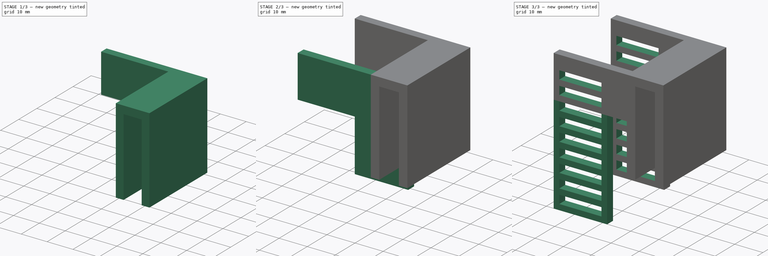
[diagram: build sequence overview — one tinted view per stage of 3, left to right]
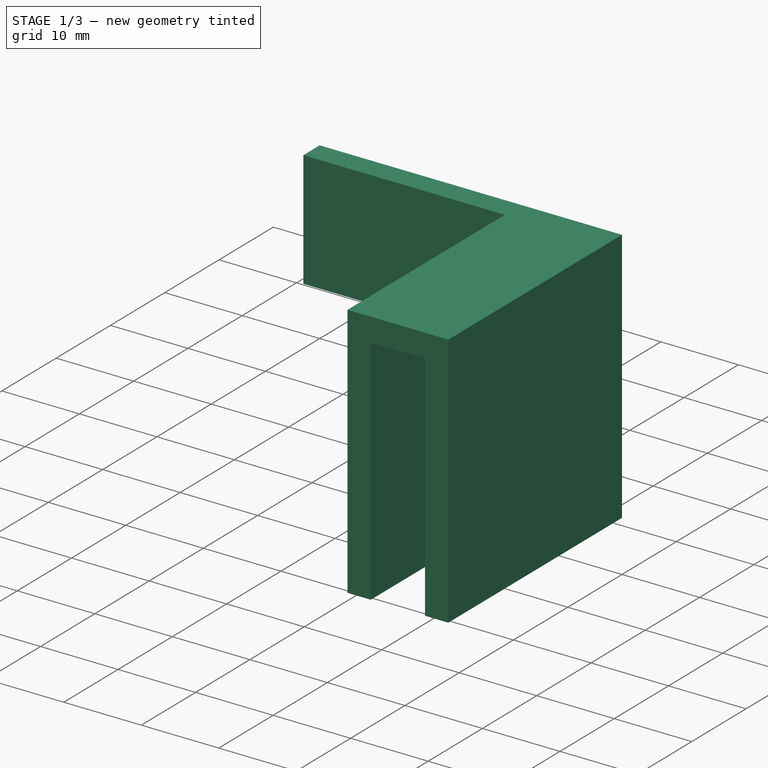
[diagram: stage 1 of 3 — iso view after this stage's code; geometry added in this stage tinted green]
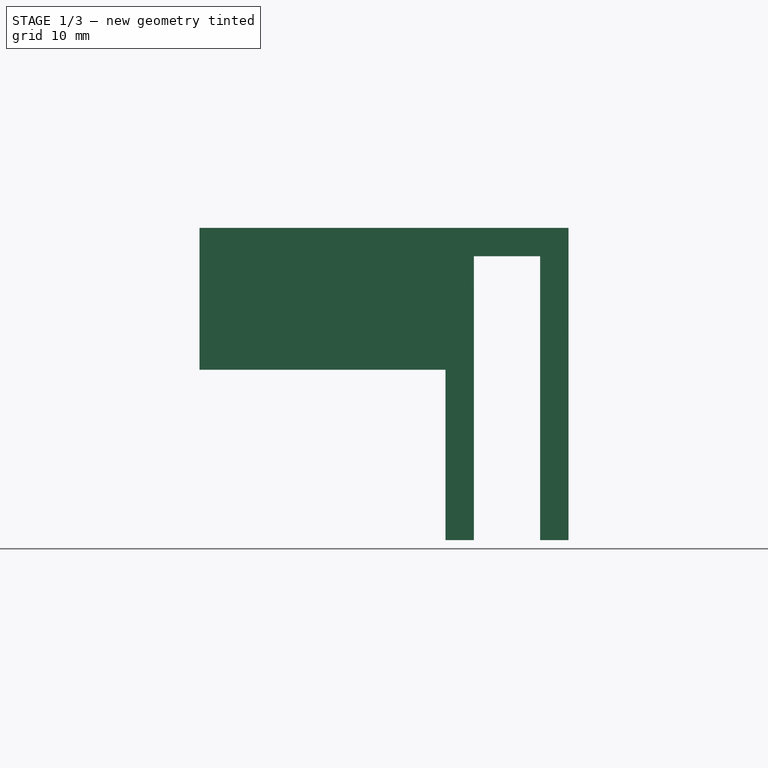
[diagram: stage 1 of 3 — front view after this stage's code; geometry added in this stage tinted green]
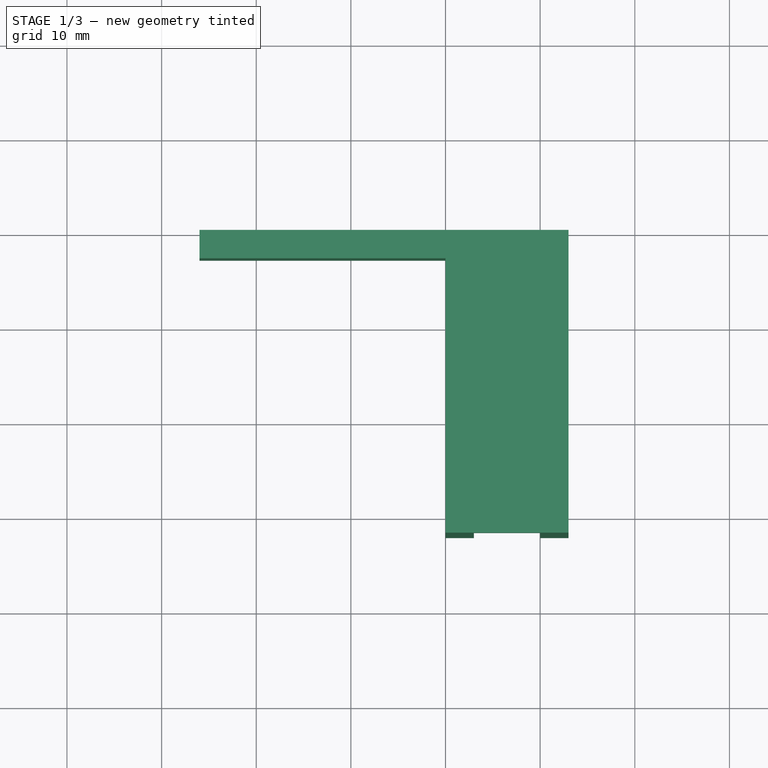
[diagram: stage 1 of 3 — top view after this stage's code; geometry added in this stage tinted green]
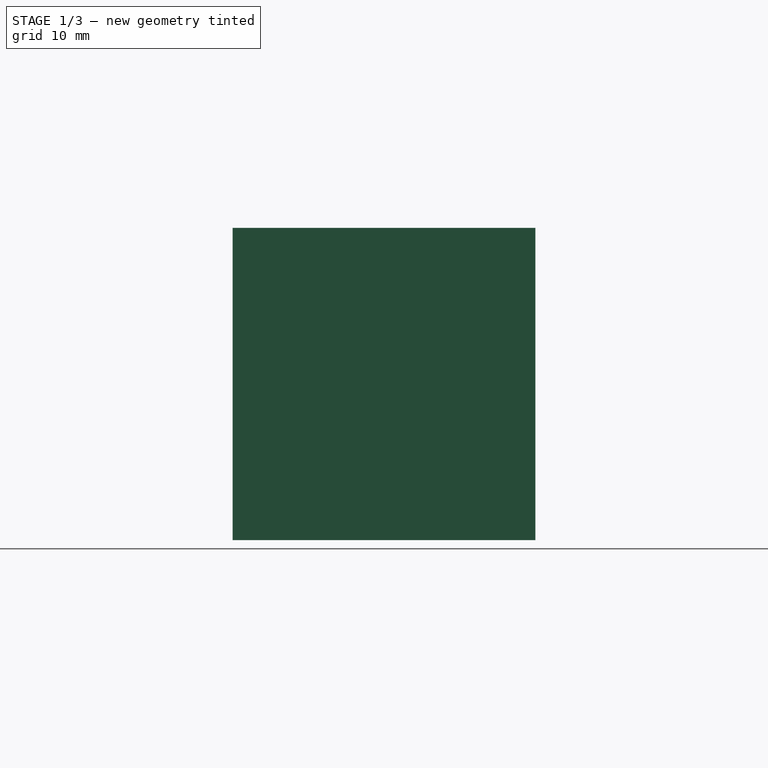
[diagram: stage 1 of 3 — right view after this stage's code; geometry added in this stage tinted green]
FCSTD DOCUMENT  (FreeCAD 0.21R33694 (Git))
Label: FloatSwitchMount
License: All rights reserved
LicenseURL: https://en.wikipedia.org/wiki/All_rights_reserved
objects: Sketcher::SketchObject×6, PartDesign::Pad×5, PartDesign::Pocket×1, PartDesign::Body×1
note: 19 computed .brp shape members not serialized (recipe doc carries the construction recipe); baked Part::Feature solids carry a one-line shape summary decoded from their .brp

FEATURE [Sketcher::SketchObject] Sketch
  FullyConstrained = true
  MapMode = 5
  Placement = pos=(0,0,0) rot=(1,0,0;1.5708rad)
  Support = -> [XZ_Plane]
  sketch-geometry (8):
    g0: LineSegment StartX=0 StartY=0 StartZ=0 EndX=0 EndY=33 EndZ=0
    g1: LineSegment StartX=0 StartY=33 StartZ=0 EndX=13 EndY=33 EndZ=0
    g2: LineSegment StartX=13 StartY=33 StartZ=0 EndX=13 EndY=0 EndZ=0
    g3: LineSegment StartX=13 StartY=0 StartZ=0 EndX=10 EndY=0 EndZ=0
    g4: LineSegment StartX=10 StartY=0 StartZ=0 EndX=10 EndY=30 EndZ=0
    g5: LineSegment StartX=10 StartY=30 StartZ=0 EndX=3 EndY=30 EndZ=0
    g6: LineSegment StartX=3 StartY=30 StartZ=0 EndX=3 EndY=0 EndZ=0
    g7: LineSegment StartX=3 StartY=0 StartZ=0 EndX=0 EndY=0 EndZ=0
  constraints (23):
    c: Coincident(g-1,g0)
    c: PointOnObject(g0,g-2)
    c: Coincident(g0,g1)
    c: Horizontal(g1)
    c: Coincident(g1,g2)
    c: PointOnObject(g2,g-1)
    c: Vertical(g2)
    c: Coincident(g2,g3)
    c: Coincident(g3,g4)
    c: Vertical(g4)
    c: Coincident(g4,g5)
    c: Horizontal(g5)
    c: Coincident(g5,g6)
    c: PointOnObject(g6,g-1)
    c: Vertical(g6)
    c: Coincident(g6,g7)
    c: Coincident(g7,g0)
    c: DistanceY(g0,g0) = 33
    c: DistanceY(g6,g6) = 30
    c: DistanceX(g7,g7) = 3
    c: DistanceX(g3,g3) = 3
    c: DistanceX(g5,g5) = 7
    c: DistanceY(g4,g4) = 30
FEATURE [PartDesign::Pad] Pad
  Direction = (0,-1,2e-16)
  Length = 32
  Length2 = 10
  Placement = pos=(0,0,0) rot=(1,0,0;1.5708rad)
  Profile = -> Sketch
  ReferenceAxis = -> Sketch [N_Axis]
  Type = 0
FEATURE [Sketcher::SketchObject] Sketch001
  FullyConstrained = true
  MapMode = 5
  Placement = pos=(0,0,0) rot=(0.707107,0,-0.707107;3.14159rad)
  Support = -> [Pad]
  sketch-geometry (4):
    g0: LineSegment StartX=-33 StartY=0 StartZ=0 EndX=-18 EndY=0 EndZ=0
    g1: LineSegment StartX=-18 StartY=0 StartZ=0 EndX=-18 EndY=3 EndZ=0
    g2: LineSegment StartX=-18 StartY=3 StartZ=0 EndX=-33 EndY=3 EndZ=0
    g3: LineSegment StartX=-33 StartY=3 StartZ=0 EndX=-33 EndY=0 EndZ=0
  constraints (12):
    c: Coincident(g0,g1)
    c: Coincident(g1,g2)
    c: Coincident(g2,g3)
    c: Coincident(g3,g0)
    c: Horizontal(g0)
    c: Horizontal(g2)
    c: Vertical(g1)
    c: Vertical(g3)
    c: PointOnObject(g0,g-1)
    c: DistanceX(g0,g0) = 15
    c: DistanceY(g3,g3) = 3
    c: DistanceX(g0,g-1) = 18
FEATURE [PartDesign::Pad] Pad001
  BaseFeature = -> Pad
  Direction = (-1,0,-2e-16)
  Length = 26
  Length2 = 10
  Placement = pos=(0,0,0) rot=(1,0,0;1.5708rad)
  Profile = -> Sketch001
  ReferenceAxis = -> Sketch001 [N_Axis]
  Type = 0
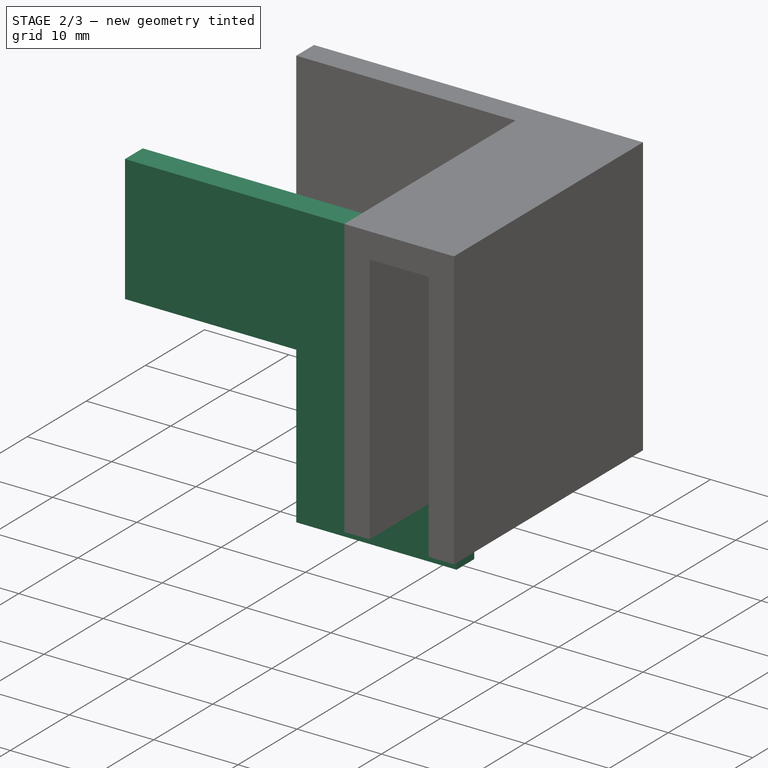
[diagram: stage 2 of 3 — iso view after this stage's code; geometry added in this stage tinted green]
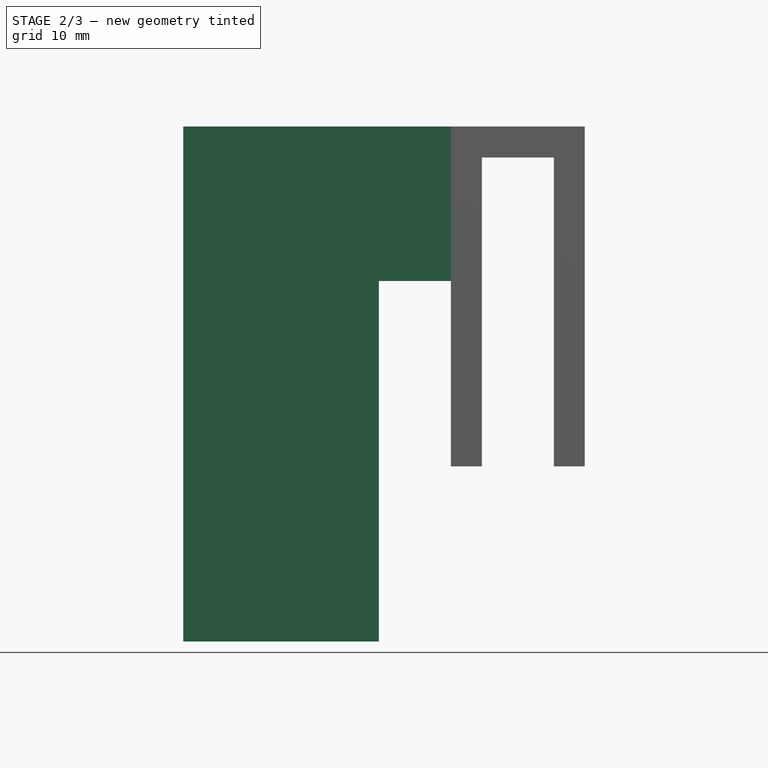
[diagram: stage 2 of 3 — front view after this stage's code; geometry added in this stage tinted green]
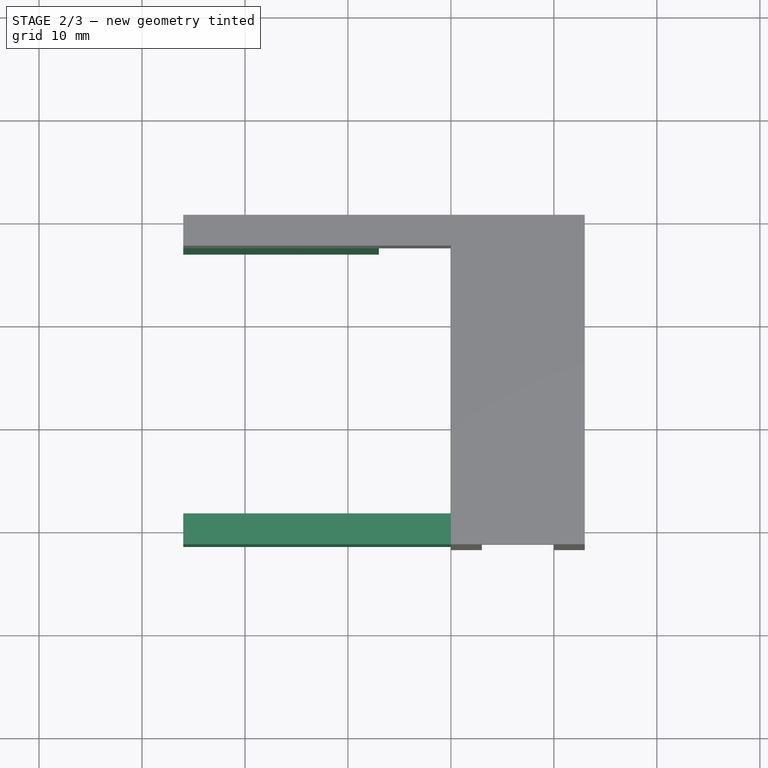
[diagram: stage 2 of 3 — top view after this stage's code; geometry added in this stage tinted green]
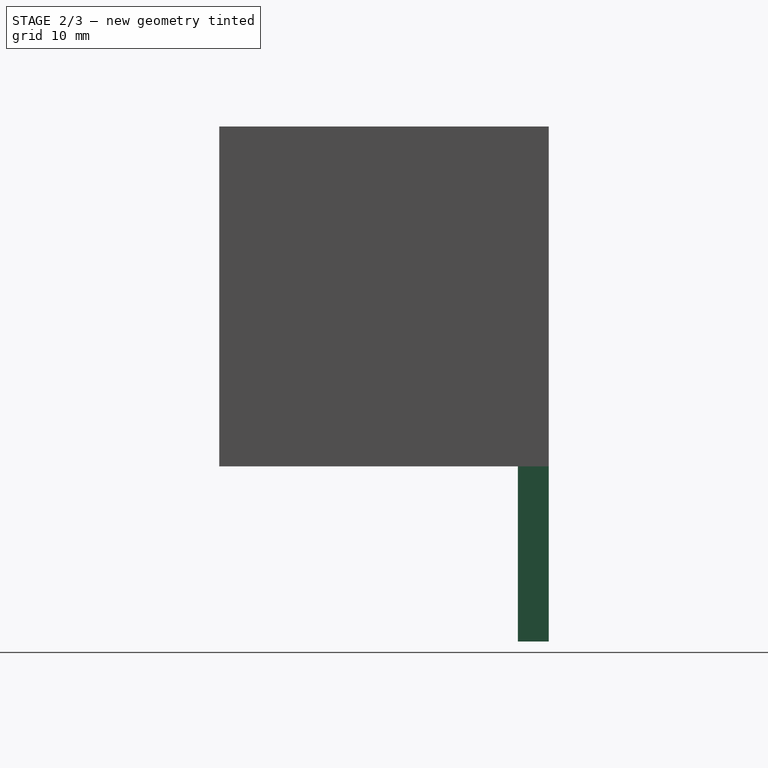
[diagram: stage 2 of 3 — right view after this stage's code; geometry added in this stage tinted green]
FEATURE [Sketcher::SketchObject] Sketch002
  FullyConstrained = true
  MapMode = 5
  Placement = pos=(-4e-15,0,18) rot=(1,0,0;3.14159rad)
  Support = -> [Pad001]
  sketch-geometry (4):
    g0: LineSegment StartX=-26 StartY=3 StartZ=0 EndX=-7 EndY=3 EndZ=0
    g1: LineSegment StartX=-7 StartY=3 StartZ=0 EndX=-7 EndY=0 EndZ=0
    g2: LineSegment StartX=-7 StartY=0 StartZ=0 EndX=-26 EndY=0 EndZ=0
    g3: LineSegment StartX=-26 StartY=0 StartZ=0 EndX=-26 EndY=3 EndZ=0
  constraints (12):
    c: Coincident(g0,g1)
    c: Coincident(g1,g2)
    c: Coincident(g2,g3)
    c: Coincident(g3,g0)
    c: Horizontal(g0)
    c: Horizontal(g2)
    c: Vertical(g1)
    c: Vertical(g3)
    c: PointOnObject(g1,g-1)
    c: DistanceY(g3,g3) = 3
    c: DistanceX(g0,g0) = 19
    c: Distance(g1,g-1) = 7
FEATURE [PartDesign::Pad] Pad002
  BaseFeature = -> Pad001
  Direction = (2e-16,0,-1)
  Length = 35
  Length2 = 10
  Placement = pos=(0,0,0) rot=(1,0,0;1.5708rad)
  Profile = -> Sketch002
  ReferenceAxis = -> Sketch002 [N_Axis]
  Type = 0
FEATURE [Sketcher::SketchObject] Sketch003
  FullyConstrained = true
  MapMode = 5
  Placement = pos=(0,0,0) rot=(0.707107,0,-0.707107;3.14159rad)
  Support = -> [Pad002]
  sketch-geometry (4):
    g0: LineSegment StartX=-33 StartY=32 StartZ=0 EndX=-18 EndY=32 EndZ=0
    g1: LineSegment StartX=-18 StartY=32 StartZ=0 EndX=-18 EndY=29 EndZ=0
    g2: LineSegment StartX=-18 StartY=29 StartZ=0 EndX=-33 EndY=29 EndZ=0
    g3: LineSegment StartX=-33 StartY=29 StartZ=0 EndX=-33 EndY=32 EndZ=0
  constraints (12):
    c: Coincident(g0,g1)
    c: Coincident(g1,g2)
    c: Coincident(g2,g3)
    c: Coincident(g3,g0)
    c: Horizontal(g0)
    c: Horizontal(g2)
    c: Vertical(g1)
    c: Vertical(g3)
    c: DistanceX(g0,g0) = 15
    c: DistanceY(g1,g1) = 3
    c: DistanceY(g-1,g1) = 29
    c: DistanceX(g1,g-1) = 18
FEATURE [PartDesign::Pad] Pad003
  BaseFeature = -> Pad002
  Direction = (-1,0,-2e-16)
  Length = 26
  Length2 = 10
  Placement = pos=(0,0,0) rot=(1,0,0;1.5708rad)
  Profile = -> Sketch003
  ReferenceAxis = -> Sketch003 [N_Axis]
  Type = 0
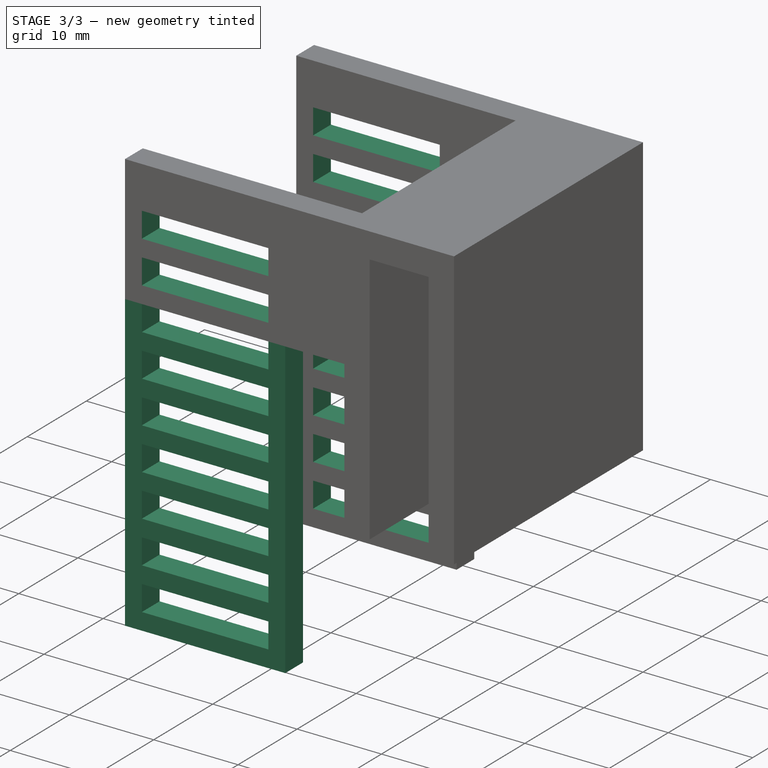
[diagram: stage 3 of 3 — iso view after this stage's code; geometry added in this stage tinted green]
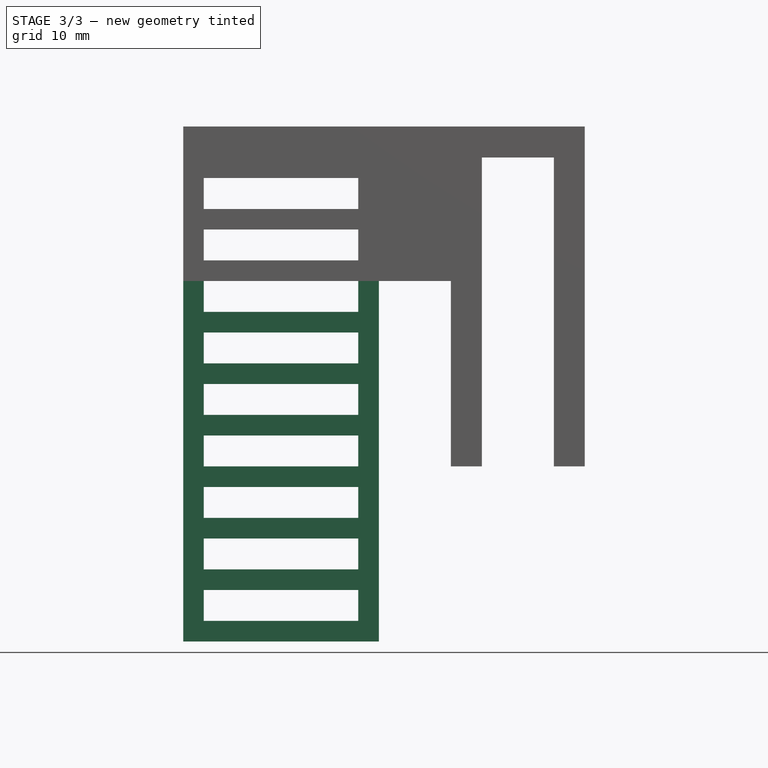
[diagram: stage 3 of 3 — front view after this stage's code; geometry added in this stage tinted green]
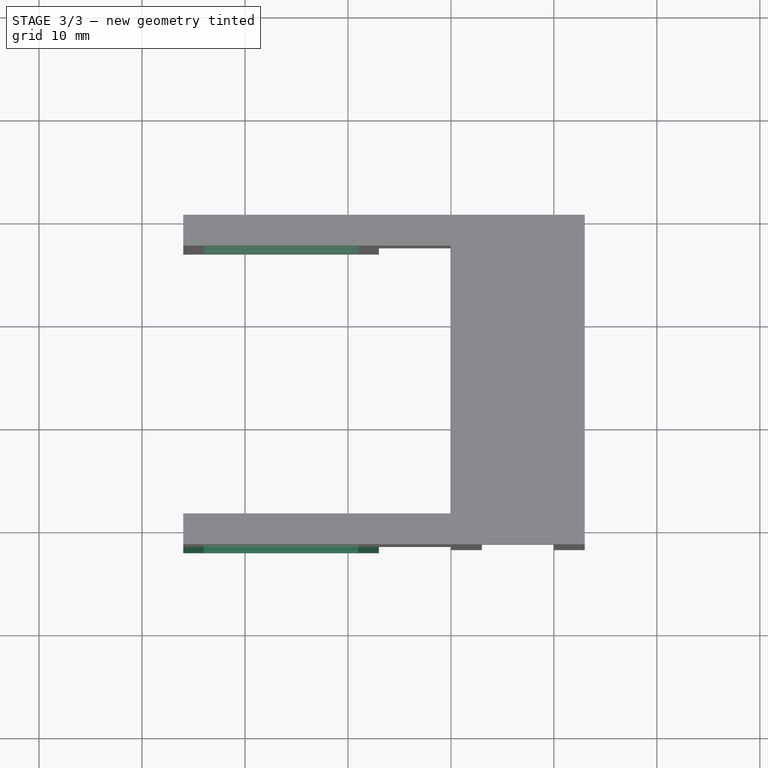
[diagram: stage 3 of 3 — top view after this stage's code; geometry added in this stage tinted green]
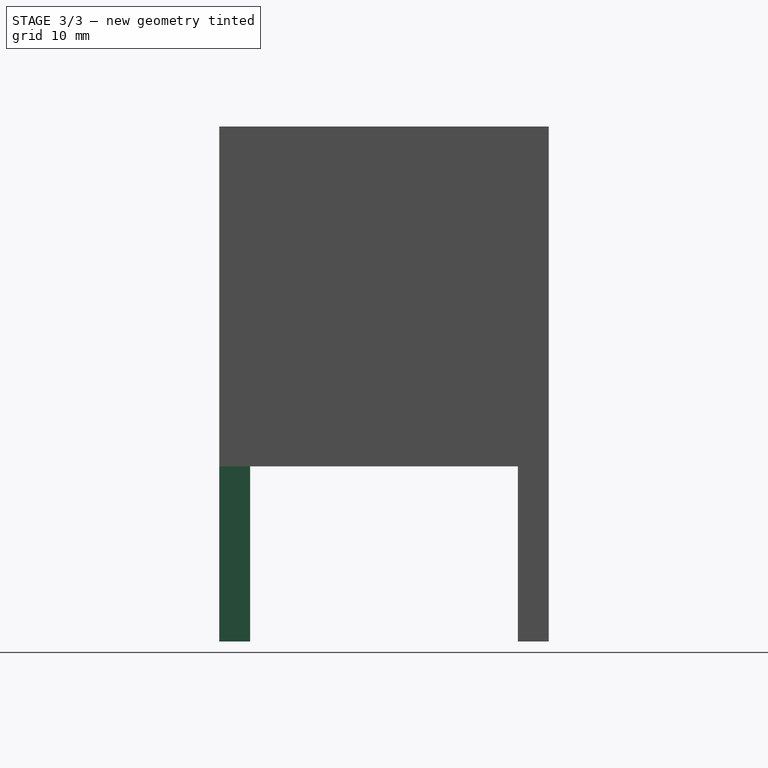
[diagram: stage 3 of 3 — right view after this stage's code; geometry added in this stage tinted green]
FEATURE [Sketcher::SketchObject] Sketch004
  FullyConstrained = true
  MapMode = 5
  Placement = pos=(-4e-15,0,18) rot=(1,0,0;3.14159rad)
  Support = -> [Pad003]
  sketch-geometry (4):
    g0: LineSegment StartX=-26 StartY=32 StartZ=0 EndX=-7 EndY=32 EndZ=0
    g1: LineSegment StartX=-7 StartY=32 StartZ=0 EndX=-7 EndY=29 EndZ=0
    g2: LineSegment StartX=-7 StartY=29 StartZ=0 EndX=-26 EndY=29 EndZ=0
    g3: LineSegment StartX=-26 StartY=29 StartZ=0 EndX=-26 EndY=32 EndZ=0
  constraints (12):
    c: Coincident(g0,g1)
    c: Coincident(g1,g2)
    c: Coincident(g2,g3)
    c: Coincident(g3,g0)
    c: Horizontal(g0)
    c: Horizontal(g2)
    c: Vertical(g1)
    c: Vertical(g3)
    c: DistanceX(g0,g0) = 19
    c: DistanceY(g1,g1) = 3
    c: DistanceY(g-1,g1) = 29
    c: DistanceX(g1,g-1) = 7
FEATURE [PartDesign::Pad] Pad004
  BaseFeature = -> Pad003
  Direction = (2e-16,0,-1)
  Length = 35
  Length2 = 10
  Placement = pos=(0,0,0) rot=(1,0,0;1.5708rad)
  Profile = -> Sketch004
  ReferenceAxis = -> Sketch004 [N_Axis]
  Type = 0
FEATURE [Sketcher::SketchObject] Sketch006
  FullyConstrained = true
  MapMode = 5
  Placement = pos=(0,-32,0) rot=(1,0,0;1.5708rad)
  Support = -> [Pad004]
  sketch-geometry (37):
    g0: LineSegment StartX=-24 StartY=-15 StartZ=0 EndX=-9 EndY=-15 EndZ=0
    g1: LineSegment StartX=-9 StartY=-15 StartZ=0 EndX=-9 EndY=-12 EndZ=0
    g2: LineSegment StartX=-9 StartY=-12 StartZ=0 EndX=-24 EndY=-12 EndZ=0
    g3: LineSegment StartX=-24 StartY=-12 StartZ=0 EndX=-24 EndY=-15 EndZ=0
    g4: GeomPoint X=-26 Y=-17 Z=0
    g5: LineSegment StartX=-24 StartY=-10 StartZ=0 EndX=-9 EndY=-10 EndZ=0
    g6: LineSegment StartX=-9 StartY=-10 StartZ=0 EndX=-9 EndY=-7 EndZ=0
    g7: LineSegment StartX=-9 StartY=-7 StartZ=0 EndX=-24 EndY=-7 EndZ=0
    g8: LineSegment StartX=-24 StartY=-7 StartZ=0 EndX=-24 EndY=-10 EndZ=0
    g9: LineSegment StartX=-24 StartY=-5 StartZ=0 EndX=-9 EndY=-5 EndZ=0
    g10: LineSegment StartX=-9 StartY=-5 StartZ=0 EndX=-9 EndY=-2 EndZ=0
    g11: LineSegment StartX=-9 StartY=-2 StartZ=0 EndX=-24 EndY=-2 EndZ=0
    g12: LineSegment StartX=-24 StartY=-2 StartZ=0 EndX=-24 EndY=-5 EndZ=0
    g13: LineSegment StartX=-24 StartY=3e-16 StartZ=0 EndX=-9 EndY=3e-16 EndZ=0
    g14: LineSegment StartX=-9 StartY=3e-16 StartZ=0 EndX=-9 EndY=3 EndZ=0
    g15: LineSegment StartX=-9 StartY=3 StartZ=0 EndX=-24 EndY=3 EndZ=0
    g16: LineSegment StartX=-24 StartY=3 StartZ=0 EndX=-24 EndY=4e-16 EndZ=0
    g17: LineSegment StartX=-24 StartY=5 StartZ=0 EndX=-9 EndY=5 EndZ=0
    g18: LineSegment StartX=-9 StartY=5 StartZ=0 EndX=-9 EndY=8 EndZ=0
    g19: LineSegment StartX=-9 StartY=8 StartZ=0 EndX=-24 EndY=8 EndZ=0
    g20: LineSegment StartX=-24 StartY=8 StartZ=0 EndX=-24 EndY=5 EndZ=0
    g21: LineSegment StartX=-24 StartY=10 StartZ=0 EndX=-9 EndY=10 EndZ=0
    g22: LineSegment StartX=-9 StartY=10 StartZ=0 EndX=-9 EndY=13 EndZ=0
    g23: LineSegment StartX=-9 StartY=13 StartZ=0 EndX=-24 EndY=13 EndZ=0
    g24: LineSegment StartX=-24 StartY=13 StartZ=0 EndX=-24 EndY=10 EndZ=0
    g25: LineSegment StartX=-24 StartY=15 StartZ=0 EndX=-9 EndY=15 EndZ=0
    g26: LineSegment StartX=-9 StartY=15 StartZ=0 EndX=-9 EndY=18 EndZ=0
    g27: LineSegment StartX=-9 StartY=18 StartZ=0 EndX=-24 EndY=18 EndZ=0
    g28: LineSegment StartX=-24 StartY=18 StartZ=0 EndX=-24 EndY=15 EndZ=0
    g29: LineSegment StartX=-24 StartY=20 StartZ=0 EndX=-9 EndY=20 EndZ=0
    g30: LineSegment StartX=-9 StartY=20 StartZ=0 EndX=-9 EndY=23 EndZ=0
    g31: LineSegment StartX=-9 StartY=23 StartZ=0 EndX=-24 EndY=23 EndZ=0
    g32: LineSegment StartX=-24 StartY=23 StartZ=0 EndX=-24 EndY=20 EndZ=0
    g33: LineSegment StartX=-24 StartY=25 StartZ=0 EndX=-9 EndY=25 EndZ=0
    g34: LineSegment StartX=-9 StartY=25 StartZ=0 EndX=-9 EndY=28 EndZ=0
    g35: LineSegment StartX=-9 StartY=28 StartZ=0 EndX=-24 EndY=28 EndZ=0
    g36: LineSegment StartX=-24 StartY=28 StartZ=0 EndX=-24 EndY=25 EndZ=0
  constraints (110):
    c: Coincident(g0,g1)
    c: Coincident(g1,g2)
    c: Coincident(g2,g3)
    c: Coincident(g3,g0)
    c: Horizontal(g0)
    c: Horizontal(g2)
    c: Vertical(g1)
    c: Vertical(g3)
    c: DistanceX(g2,g2) = 15
    c: DistanceY(g1,g1) = 3
    c: DistanceX(g4,g-1) = 26
    c: DistanceY(g4,g-1) = 17
    c: DistanceX(g4,g0) = 2
    c: DistanceY(g4,g0) = 2
    c: Coincident(g5,g6)
    c: Coincident(g6,g7)
    c: Coincident(g7,g8)
    c: Coincident(g8,g5)
    c: Horizontal(g5)
    c: Horizontal(g7)
    c: Vertical(g6)
    c: Vertical(g8)
    c: Coincident(g9,g10)
    c: Coincident(g10,g11)
    c: Coincident(g11,g12)
    c: Coincident(g12,g9)
    c: Horizontal(g9)
    c: Horizontal(g11)
    c: Vertical(g10)
    c: Vertical(g12)
    c: Coincident(g13,g14)
    c: Coincident(g14,g15)
    c: Coincident(g15,g16)
    c: Coincident(g16,g13)
    c: Horizontal(g13)
    c: Horizontal(g15)
    c: Vertical(g14)
    c: Vertical(g16)
    c: DistanceY(g6,g6) = 3
    c: DistanceX(g7,g7) = 15
    c: DistanceY(g4,g5) = 7
    c: DistanceX(g4,g5) = 2
    c: DistanceX(g9,g9) = 15
    c: DistanceY(g10,g10) = 3
    c: DistanceY(g14,g14) = 3
    c: DistanceX(g13,g13) = 15
    c: DistanceX(g4,g9) = 2
    c: DistanceY(g4,g9) = 12
    c: DistanceX(g4,g13) = 2
    c: DistanceY(g4,g13) = 17
    c: Coincident(g17,g18)
    c: Coincident(g18,g19)
    c: Coincident(g19,g20)
    c: Coincident(g20,g17)
    c: Horizontal(g17)
    c: Horizontal(g19)
    c: Vertical(g18)
    c: Vertical(g20)
    c: Coincident(g21,g22)
    c: Coincident(g22,g23)
    c: Coincident(g23,g24)
    c: Coincident(g24,g21)
    c: Horizontal(g21)
    c: Horizontal(g23)
    c: Vertical(g22)
    c: Vertical(g24)
    c: Coincident(g25,g26)
    c: Coincident(g26,g27)
    c: Coincident(g27,g28)
    c: Coincident(g28,g25)
    c: Horizontal(g25)
    c: Horizontal(g27)
    c: Vertical(g26)
    c: Vertical(g28)
    c: DistanceY(g26,g26) = 3
    c: DistanceY(g22,g22) = 3
    c: DistanceY(g18,g18) = 3
    c: DistanceX(g19,g19) = 15
    c: DistanceX(g23,g23) = 15
    c: DistanceX(g27,g27) = 15
    c: DistanceX(g4,g21) = 2
    c: DistanceX(g4,g25) = 2
    c: DistanceX(g4,g17) = 2
    c: DistanceY(g4,g17) = 22
    c: DistanceY(g4,g21) = 27
    c: DistanceY(g4,g25) = 32
    c: Coincident(g29,g30)
    c: Coincident(g30,g31)
    c: Coincident(g31,g32)
    c: Coincident(g32,g29)
    c: Horizontal(g29)
    c: Horizontal(g31)
    c: Vertical(g30)
    c: Vertical(g32)
    c: Coincident(g33,g34)
    c: Coincident(g34,g35)
    c: Coincident(g35,g36)
    c: Coincident(g36,g33)
    c: Horizontal(g33)
    c: Horizontal(g35)
    c: Vertical(g34)
    c: Vertical(g36)
    c: DistanceX(g31,g31) = 15
    c: DistanceX(g35,g35) = 15
    c: DistanceX(g4,g29) = 2
    c: DistanceX(g4,g33) = 2
    c: DistanceY(g30,g30) = 3
    c: DistanceY(g34,g34) = 3
    c: DistanceY(g4,g29) = 37
    c: DistanceY(g4,g33) = 42
FEATURE [PartDesign::Pocket] Pocket
  BaseFeature = -> Pad004
  Direction = (0,1,-2e-16)
  Length = 100
  Length2 = 5
  Placement = pos=(0,0,0) rot=(1,0,0;1.5708rad)
  Profile = -> Sketch006
  ReferenceAxis = -> Sketch006 [N_Axis]
  Type = 0
FEATURE [PartDesign::Body] Body
  Group = -> [Sketch,Pad,Sketch001,Pad001,Sketch002,Pad002,Sketch003,Pad003,Sketch004,Pad004,Sketch006,Pocket]
  Origin = -> Origin
  Tip = -> Pocket
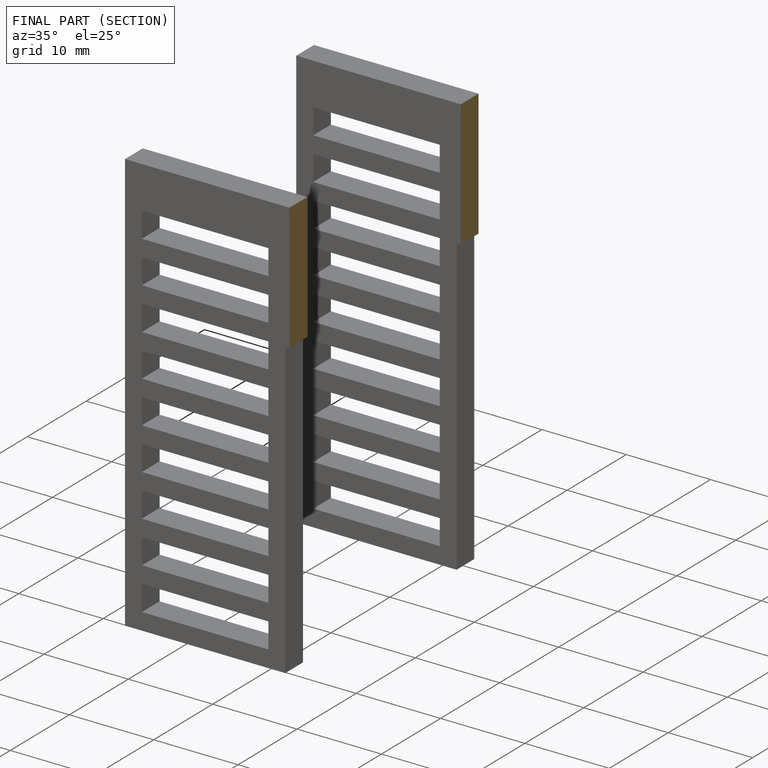
[diagram: finished part — half-section view (interior)]
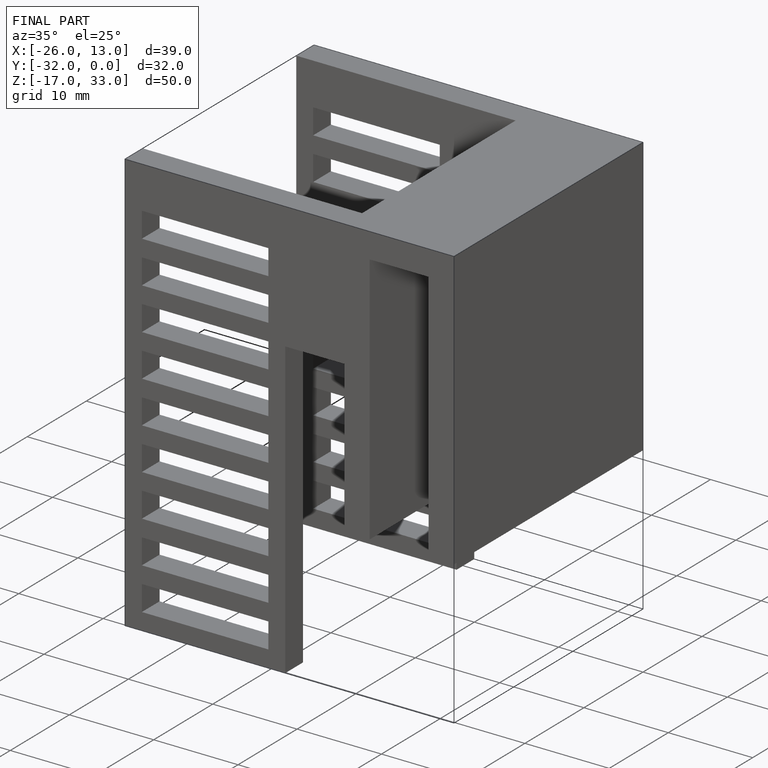
[diagram: finished part — iso view with bounding-box wireframe]
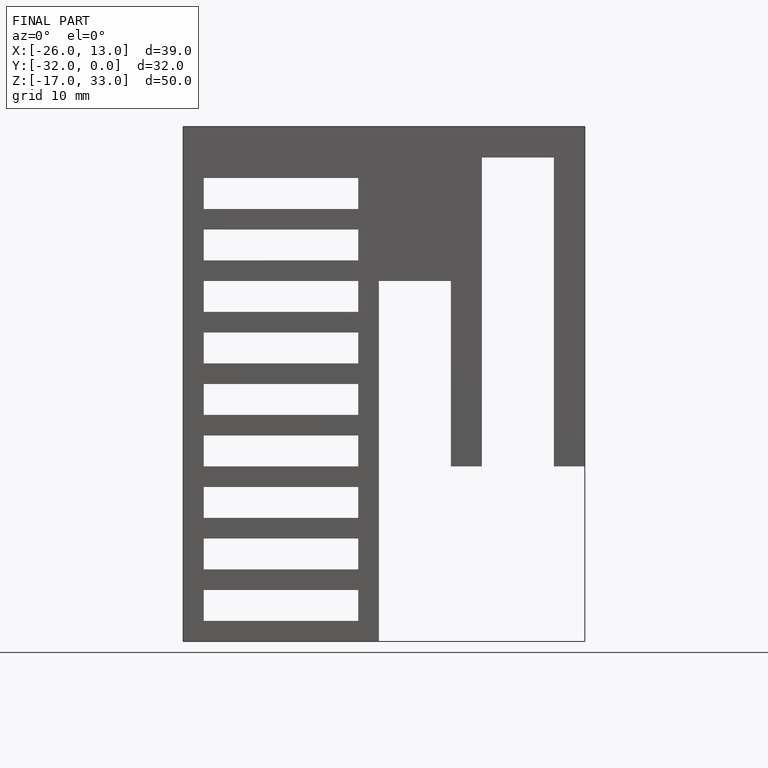
[diagram: finished part — front view with bounding-box wireframe]
